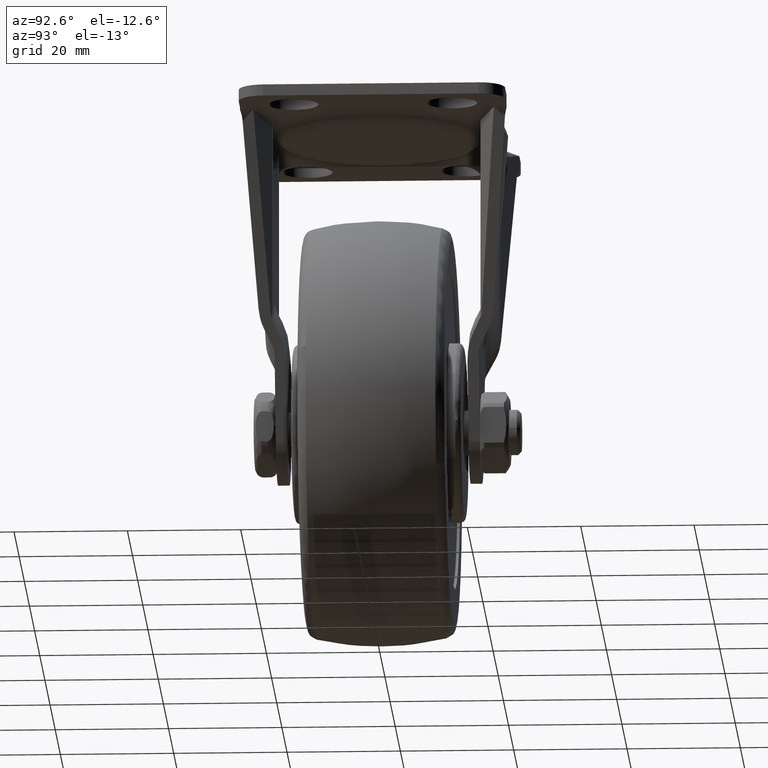
[diagram: clean part render]
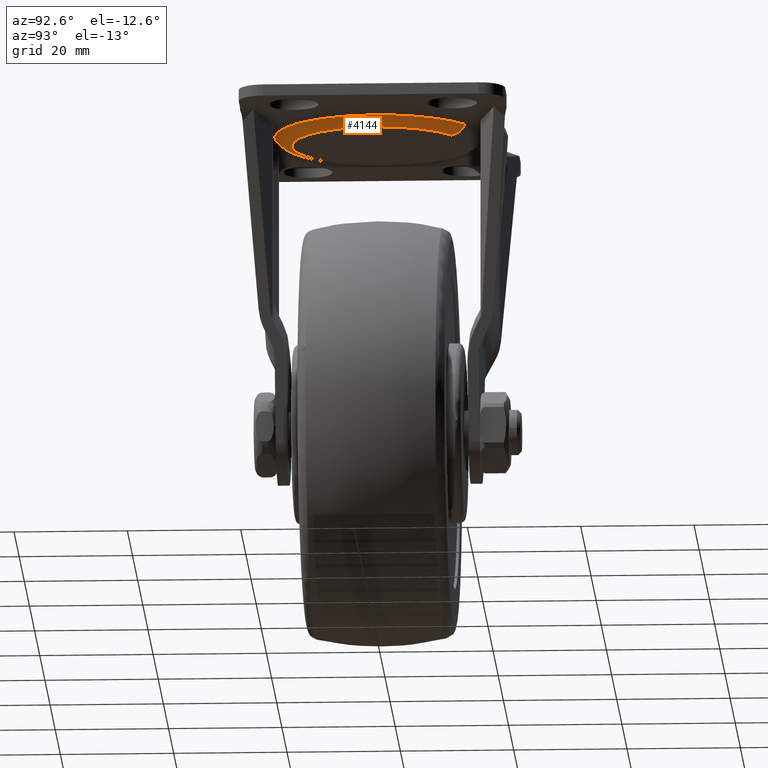
[diagram: same view with one face highlighted and labeled with its STEP entity id]
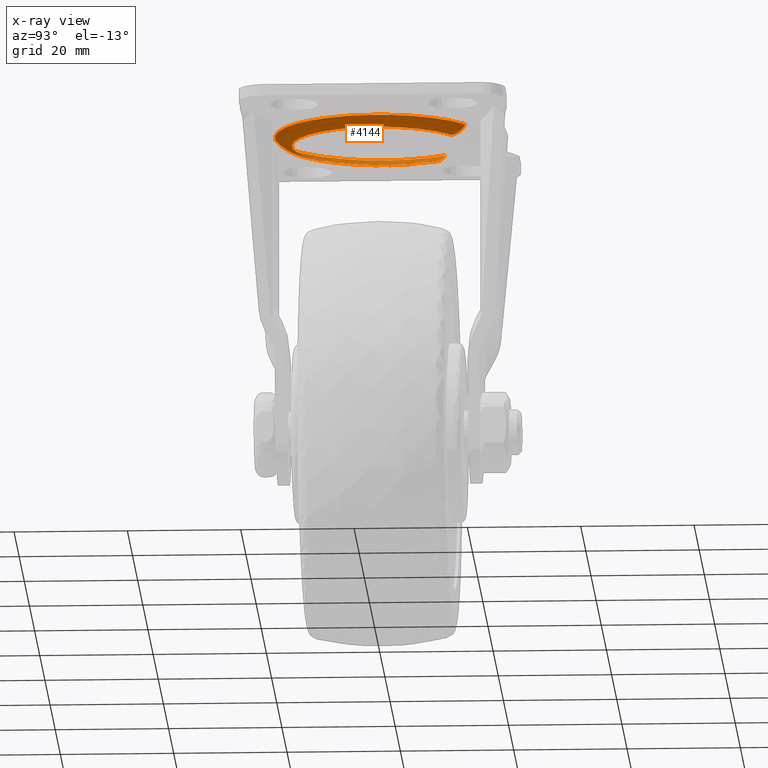
[diagram: x-ray of the same camera — body ghosted, the highlighted face saturated]
A machine part, auxiliary view. The second image highlights one B-rep face of the part: STEP entity #4144.
The next image is the same camera in x-ray: the body ghosted, the highlighted face saturated — about 0% of this face is hidden behind the body in this view.
In plain terms, the highlighted face is a freeform B-spline surface patch.
Its self-contained STEP definition (entity closure, byte-faithful):
#3983=CARTESIAN_POINT('',(10.052684518063950,15.645846048123465,-1.864473569855409));
#3984=CARTESIAN_POINT('',(10.500461477955028,15.358142813769922,-1.864473569855409));
#3985=CARTESIAN_POINT('',(10.931051116857459,15.045301128988827,-1.864473569855410));
#3986=CARTESIAN_POINT('',(25.976352245846289,4.114250012131377,-1.864473569855410));
#3987=CARTESIAN_POINT('',(15.045301128988827,-10.931051116857459,-1.864473569855410));
#3988=CARTESIAN_POINT('',(4.114250012131377,-25.976352245846289,-1.864473569855410));
#3989=CARTESIAN_POINT('',(-10.931051116857459,-15.045301128988827,-1.864473569855410));
#3990=CARTESIAN_POINT('',(-25.976352245846289,-4.114250012131378,-1.864473569855410));
#3991=CARTESIAN_POINT('',(-15.045301128988838,10.931051116857446,-1.864473569855410));
#3992=CARTESIAN_POINT('',(9.416219234174388,14.655261112446103,-3.589028156761221));
#3993=CARTESIAN_POINT('',(9.835646106147740,14.385773223496031,-3.589028156761219));
#3994=CARTESIAN_POINT('',(10.238973837420275,14.092738474002616,-3.589028156761220));
#3995=CARTESIAN_POINT('',(24.331712311422883,3.853764636582346,-3.589028156761219));
#3996=CARTESIAN_POINT('',(14.092738474002616,-10.238973837420271,-3.589028156761220));
#3997=CARTESIAN_POINT('',(3.853764636582346,-24.331712311422883,-3.589028156761219));
#3998=CARTESIAN_POINT('',(-10.238973837420271,-14.092738474002616,-3.589028156761220));
#3999=CARTESIAN_POINT('',(-24.331712311422883,-3.853764636582347,-3.589028156761219));
#4000=CARTESIAN_POINT('',(-14.092738474002616,10.238973837420268,-3.589028156761220));
#4001=CARTESIAN_POINT('',(8.288567191785317,12.900200539385429,-3.496300858789510));
#4002=CARTESIAN_POINT('',(8.657765032652740,12.662985536273744,-3.496300858789510));
#4003=CARTESIAN_POINT('',(9.012791707141146,12.405043558681601,-3.496300858789510));
#4004=CARTESIAN_POINT('',(21.417835265822752,3.392251851540451,-3.496300858789510));
#4005=CARTESIAN_POINT('',(12.405043558681601,-9.012791707141144,-3.496300858789510));
#4006=CARTESIAN_POINT('',(3.392251851540453,-21.417835265822752,-3.496300858789510));
#4007=CARTESIAN_POINT('',(-9.012791707141144,-12.405043558681601,-3.496300858789510));
#4008=CARTESIAN_POINT('',(-21.417835265822752,-3.392251851540454,-3.496300858789510));
#4009=CARTESIAN_POINT('',(-12.405043558681601,9.012791707141142,-3.496300858789510));
#4017=(BOUNDED_SURFACE()B_SPLINE_SURFACE(2,2,((#3983,#3992,#4001),(#3984,#3993,#4002),(#3985,#3994,#4003),(#3986,#3995,#4004),(#3987,#3996,#4005),(#3988,#3997,#4006),(#3989,#3998,#4007),(#3990,#3999,#4008),(#3991,#4000,#4009)),.UNSPECIFIED.,.F.,.F.,.U.)B_SPLINE_SURFACE_WITH_KNOTS((3,2,2,2,3),(3,3),(0.0,1.232500553669909,32.045043780548717,62.857587007427540,93.670130234306356),(0.0,3.894767861576317),.UNSPECIFIED.)GEOMETRIC_REPRESENTATION_ITEM()RATIONAL_B_SPLINE_SURFACE(((0.907268103594793,0.792927343591557,0.907877875533492),(0.917272088960741,0.801670551371175,0.917888584545435),(0.928145985195887,0.811174037300044,0.928769789090840),(0.656298320063081,0.573586662497331,0.656739416027332),(0.928145985195887,0.811174037300044,0.928769789090840),(0.656298320063081,0.573586662497331,0.656739416027332),(0.928145985195887,0.811174037300044,0.928769789090840),(0.656298320063081,0.573586662497331,0.656739416027332),(0.928145985195887,0.811174037300044,0.928769789090840)))REPRESENTATION_ITEM('')SURFACE());
#4018=CARTESIAN_POINT('',(8.378581035810658,13.040298306119871,-3.499999999999999));
#4019=VERTEX_POINT('',#4018);
#4020=CARTESIAN_POINT('',(15.500000000000000,-5.034124E-016,-3.500000000000000));
#4021=VERTEX_POINT('',#4020);
#4022=CARTESIAN_POINT('',(8.378581035810658,13.040298306119873,-3.499999999999999));
#4023=CARTESIAN_POINT('',(15.500000000000004,8.464683199353228,-3.500000000000000));
#4024=CARTESIAN_POINT('',(15.500000000000000,-5.034124E-016,-3.500000000000000));
#4032=(BOUNDED_CURVE()B_SPLINE_CURVE(2,(#4022,#4023,#4024),.UNSPECIFIED.,.F.,.U.)B_SPLINE_CURVE_WITH_KNOTS((3,3),(0.342539826047680,0.500000000000000),.UNSPECIFIED.)CURVE()GEOMETRIC_REPRESENTATION_ITEM()RATIONAL_B_SPLINE_CURVE((0.863428933514215,0.815523931264715,1.0))REPRESENTATION_ITEM(''));
#4033=EDGE_CURVE('',#4019,#4021,#4032,.T.);
#4034=ORIENTED_EDGE('',*,*,#4033,.F.);
#4035=CARTESIAN_POINT('',(10.000241879375499,15.564227007671009,-2.000000000276351));
#4036=VERTEX_POINT('',#4035);
#4037=CARTESIAN_POINT('',(10.000241879375501,15.564227007671011,-2.000000000276351));
#4038=CARTESIAN_POINT('',(9.392119063356933,14.617753745265558,-3.499999997218101));
#4039=CARTESIAN_POINT('',(8.378581035810658,13.040298306119876,-3.500000000000000));
#4047=(BOUNDED_CURVE()B_SPLINE_CURVE(2,(#4037,#4038,#4039),.UNSPECIFIED.,.F.,.U.)B_SPLINE_CURVE_WITH_KNOTS((3,3),(-1.608413891547001,-0.388016437869730),.UNSPECIFIED.)CURVE()GEOMETRIC_REPRESENTATION_ITEM()RATIONAL_B_SPLINE_CURVE((0.897355795304068,0.802867311845169,0.897910175742363))REPRESENTATION_ITEM(''));
#4048=EDGE_CURVE('',#4036,#4019,#4047,.T.);
#4049=ORIENTED_EDGE('',*,*,#4048,.F.);
#4050=CARTESIAN_POINT('',(18.500000000000000,0.0,-2.0));
#4051=VERTEX_POINT('',#4050);
#4052=CARTESIAN_POINT('',(10.000241879375501,15.564227007671008,-2.000000000276351));
#4053=CARTESIAN_POINT('',(18.499999999999993,10.103008980134117,-2.000000000000000));
#4054=CARTESIAN_POINT('',(18.500000000000000,0.0,-2.0));
#4062=(BOUNDED_CURVE()B_SPLINE_CURVE(2,(#4052,#4053,#4054),.UNSPECIFIED.,.F.,.U.)B_SPLINE_CURVE_WITH_KNOTS((3,3),(0.342539826044364,0.500000000000000),.UNSPECIFIED.)CURVE()GEOMETRIC_REPRESENTATION_ITEM()RATIONAL_B_SPLINE_CURVE((0.863428933516233,0.815523931260830,1.0))REPRESENTATION_ITEM(''));
#4063=EDGE_CURVE('',#4036,#4051,#4062,.T.);
#4064=ORIENTED_EDGE('',*,*,#4063,.T.);
#4065=CARTESIAN_POINT('',(-18.500000000000000,0.0,-2.0));
#4066=VERTEX_POINT('',#4065);
#4067=CARTESIAN_POINT('',(18.500000000000000,0.0,-2.0));
#4068=CARTESIAN_POINT('',(18.500000000000000,-18.500000000000000,-2.000000000000000));
#4069=CARTESIAN_POINT('',(0.0,-18.500000000000000,-2.0));
#4070=CARTESIAN_POINT('',(-18.500000000000000,-18.500000000000000,-2.000000000000000));
#4071=CARTESIAN_POINT('',(-18.500000000000000,0.0,-2.0));
#4079=(BOUNDED_CURVE()B_SPLINE_CURVE(2,(#4067,#4068,#4069,#4070,#4071),.UNSPECIFIED.,.F.,.U.)B_SPLINE_CURVE_WITH_KNOTS((3,2,3),(0.500000000000000,0.750000000000000,1.0),.UNSPECIFIED.)CURVE()GEOMETRIC_REPRESENTATION_ITEM()RATIONAL_B_SPLINE_CURVE((1.0,0.707106781186548,1.0,0.707106781186548,1.0))REPRESENTATION_ITEM(''));
#4080=EDGE_CURVE('',#4051,#4066,#4079,.T.);
#4081=ORIENTED_EDGE('',*,*,#4080,.T.);
#4082=CARTESIAN_POINT('',(-14.966814395922780,10.874027167398580,-2.000000000024362));
#4083=VERTEX_POINT('',#4082);
#4084=CARTESIAN_POINT('',(-18.500000000000000,0.0,-2.0));
#4085=CARTESIAN_POINT('',(-18.499999999999993,6.011014380306810,-2.0));
#4086=CARTESIAN_POINT('',(-14.966814395922780,10.874027167398577,-2.000000000024362));
#4094=(BOUNDED_CURVE()B_SPLINE_CURVE(2,(#4084,#4085,#4086),.UNSPECIFIED.,.F.,.U.)B_SPLINE_CURVE_WITH_KNOTS((3,3),(0.0,0.101249659000233),.UNSPECIFIED.)CURVE()GEOMETRIC_REPRESENTATION_ITEM()RATIONAL_B_SPLINE_CURVE((1.0,0.881378645886630,0.858840265006256))REPRESENTATION_ITEM(''));
#4095=EDGE_CURVE('',#4066,#4083,#4094,.T.);
#4096=ORIENTED_EDGE('',*,*,#4095,.T.);
#4097=CARTESIAN_POINT('',(-12.539763414437880,9.110671411851074,-3.499999999999999));
#4098=VERTEX_POINT('',#4097);
#4099=CARTESIAN_POINT('',(-14.966814395922786,10.874027167398577,-2.000000000024362));
#4100=CARTESIAN_POINT('',(-14.056670278502152,10.212768759480772,-3.499999997909831));
#4101=CARTESIAN_POINT('',(-12.539763414437877,9.110671411851074,-3.499999999999999));
#4109=(BOUNDED_CURVE()B_SPLINE_CURVE(2,(#4099,#4100,#4101),.UNSPECIFIED.,.F.,.U.)B_SPLINE_CURVE_WITH_KNOTS((3,3),(-1.608413891776147,-0.388016437366200),.UNSPECIFIED.)CURVE()GEOMETRIC_REPRESENTATION_ITEM()RATIONAL_B_SPLINE_CURVE((0.918005596089169,0.821342759434539,0.918572733880873))REPRESENTATION_ITEM(''));
#4110=EDGE_CURVE('',#4083,#4098,#4109,.T.);
#4111=ORIENTED_EDGE('',*,*,#4110,.T.);
#4112=CARTESIAN_POINT('',(-15.500000000000000,-5.034124E-016,-3.500000000000000));
#4113=VERTEX_POINT('',#4112);
#4114=CARTESIAN_POINT('',(-15.500000000000000,-5.034124E-016,-3.500000000000000));
#4115=CARTESIAN_POINT('',(-15.500000000000004,5.036255291731909,-3.500000000000001));
#4116=CARTESIAN_POINT('',(-12.539763414437877,9.110671411851074,-3.500000000000000));
#4124=(BOUNDED_CURVE()B_SPLINE_CURVE(2,(#4114,#4115,#4116),.UNSPECIFIED.,.F.,.U.)B_SPLINE_CURVE_WITH_KNOTS((3,3),(0.0,0.101249659002421),.UNSPECIFIED.)CURVE()GEOMETRIC_REPRESENTATION_ITEM()RATIONAL_B_SPLINE_CURVE((1.0,0.881378645884066,0.858840265005282))REPRESENTATION_ITEM(''));
#4125=EDGE_CURVE('',#4113,#4098,#4124,.T.);
#4126=ORIENTED_EDGE('',*,*,#4125,.F.);
#4127=CARTESIAN_POINT('',(15.500000000000000,-5.034124E-016,-3.500000000000000));
#4128=CARTESIAN_POINT('',(15.500000000000004,-15.500000000000004,-3.499999999999999));
#4129=CARTESIAN_POINT('',(0.0,-15.500000000000000,-3.500000000000000));
#4130=CARTESIAN_POINT('',(-15.500000000000004,-15.500000000000004,-3.499999999999999));
#4131=CARTESIAN_POINT('',(-15.500000000000000,-5.034124E-016,-3.500000000000000));
#4139=(BOUNDED_CURVE()B_SPLINE_CURVE(2,(#4127,#4128,#4129,#4130,#4131),.UNSPECIFIED.,.F.,.U.)B_SPLINE_CURVE_WITH_KNOTS((3,2,3),(0.500000000000000,0.750000000000000,1.0),.UNSPECIFIED.)CURVE()GEOMETRIC_REPRESENTATION_ITEM()RATIONAL_B_SPLINE_CURVE((1.0,0.707106781186548,1.0,0.707106781186548,1.0))REPRESENTATION_ITEM(''));
#4140=EDGE_CURVE('',#4021,#4113,#4139,.T.);
#4141=ORIENTED_EDGE('',*,*,#4140,.F.);
#4142=EDGE_LOOP('',(#4034,#4049,#4064,#4081,#4096,#4111,#4126,#4141));
#4143=FACE_OUTER_BOUND('',#4142,.T.);
#4144=ADVANCED_FACE('',(#4143),#4017,.T.);